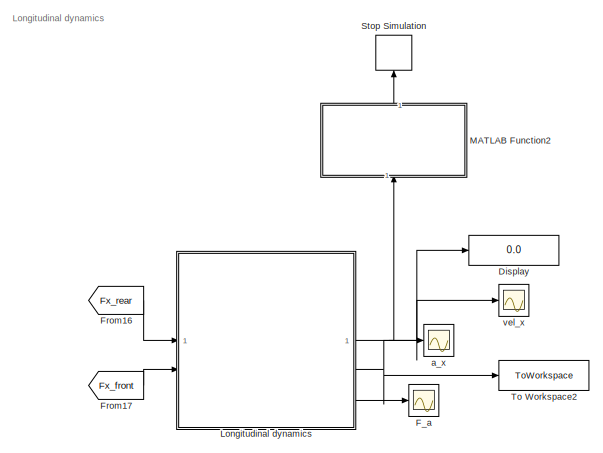
[diagram: root canvas - part 1/4, top right region]
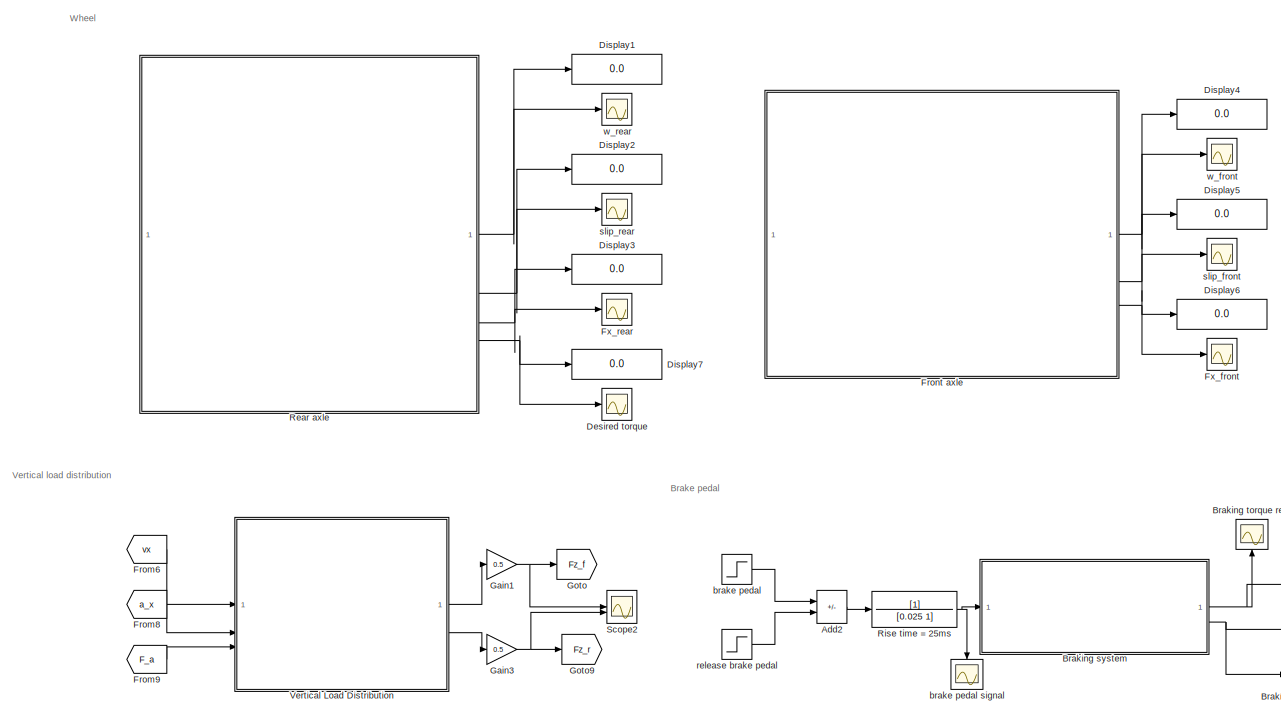
[diagram: root canvas - part 2/4, top left region]
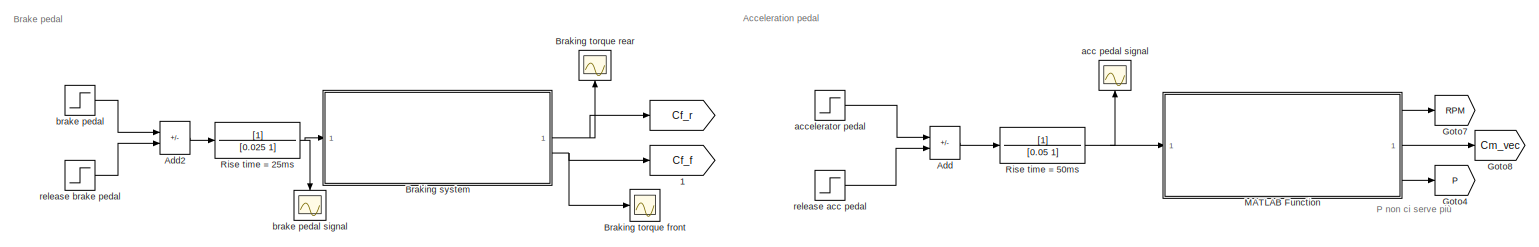
[diagram: root canvas - part 3/4, central region]
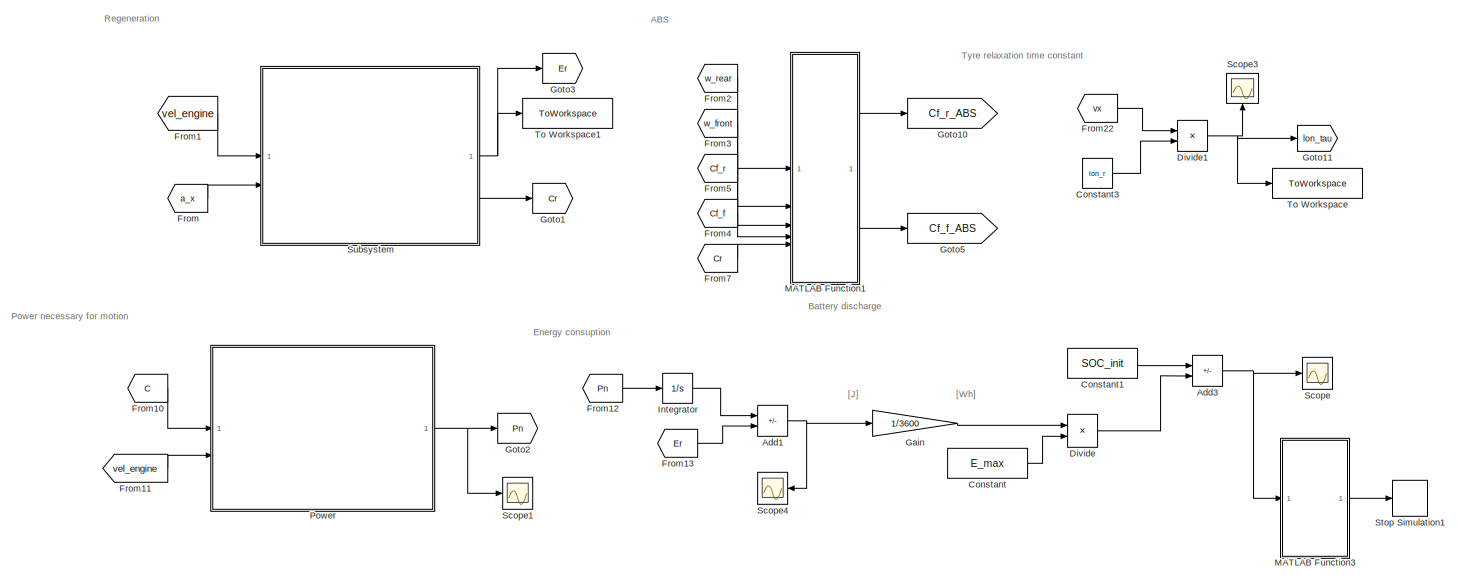
[diagram: root canvas - part 4/4, bottom center region]
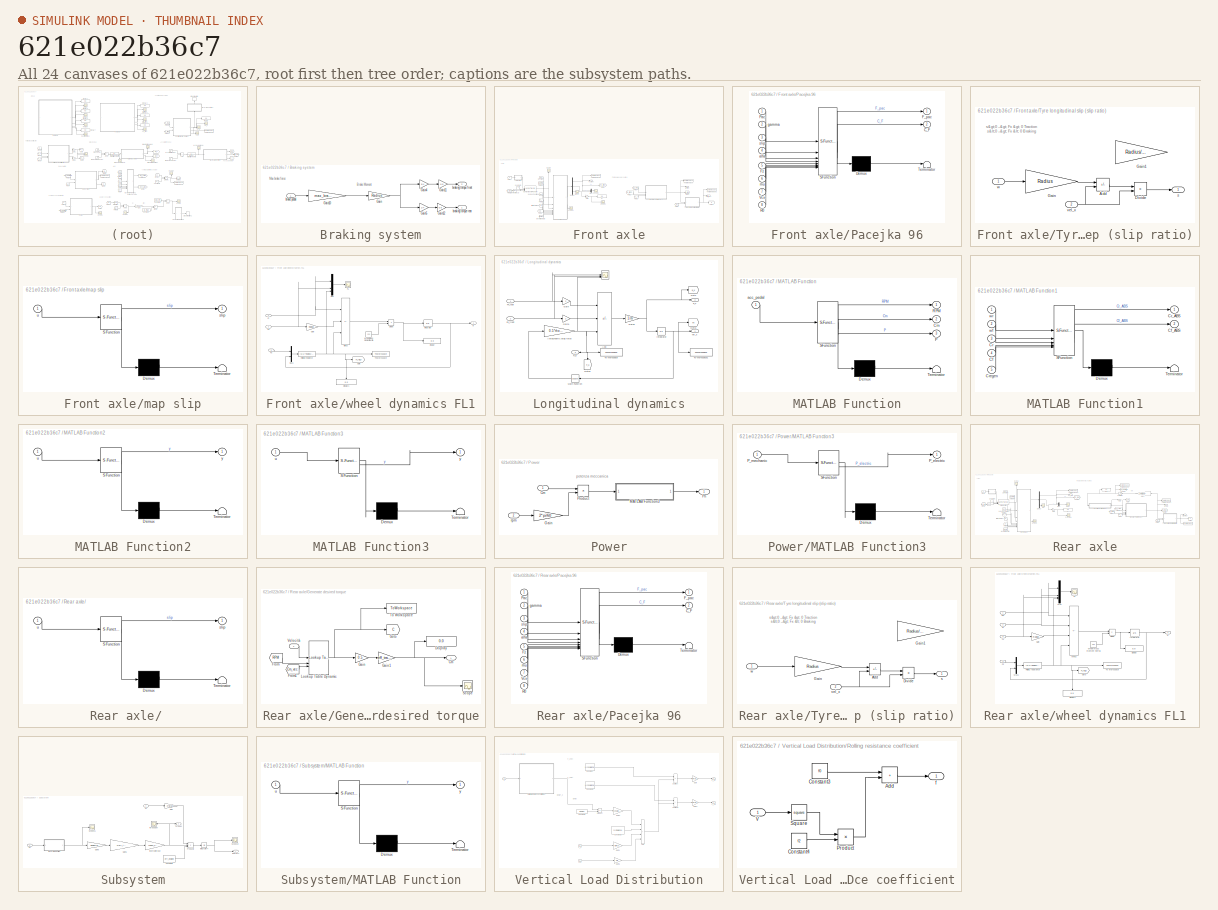
[diagram: thumbnail index - all 24 canvases of the model, root first then tree order]
MODEL slx_621e022b36c7
KIND model
CONFIG AbsTol = auto
CONFIG EnableMultiTasking = off
CONFIG FixedStep = auto
CONFIG MaxStep = auto
CONFIG MinStep = auto
CONFIG RelTol = 1e-4
CONFIG SampleTimeConstraint = Unconstrained
CONFIG SolverName = VariableStepAuto
CONFIG StartTime = 0.0
CONFIG StopTime = Ts
BLOCK [Goto]  
  GotoTag = Cf_r
  IconDisplay = Signal name
  TagVisibility = global
BLOCK [Goto]  1
  GotoTag = Cf_f
  IconDisplay = Signal name
  TagVisibility = global
BLOCK [Sum] Add
  IconShape = rectangular
  Inputs = +-
BLOCK [Sum] Add1
  IconShape = rectangular
  Inputs = +-
BLOCK [Sum] Add2
  IconShape = rectangular
  Inputs = +-
BLOCK [Sum] Add3
  IconShape = rectangular
  Inputs = +-
BLOCK [SubSystem] Braking system
BLOCK [Gain] Braking system/Gain
  Gain = Radius
BLOCK [Gain] Braking system/Gain10
  Gain = max_braking_force
BLOCK [Gain] Braking system/Gain11
  Gain = 0.5
BLOCK [Gain] Braking system/Gain12
  Gain = 0.5
BLOCK [Gain] Braking system/Gain4
  Gain = 3/4
BLOCK [Gain] Braking system/Gain5
  Gain = 1/4
BLOCK [Inport] Braking system/brake pedal
BLOCK [Outport] Braking system/braking torque front
  Port = 2
BLOCK [Outport] Braking system/braking torque rear
BLOCK [Scope] Braking torque front
  Floating = off
  NumInputPorts = 1
  ScopeSpecificationString = Simulink.scopes.TimeScopeBlockCfg('CurrentConfiguration', extmgr.ConfigurationSet(extmgr.Configuration('Core','General UI',true),extmgr.Configuration('Core','Source UI',true),extmgr.Configuration('Sources','WiredSimulink',true,'DataLoggingVariableName','ScopeData1'),extmgr.Configuration('Visuals','Time Domain',true,'SerializedDisplays',{struct('MinYLimReal','-26.94718','MaxYLimReal','242.52465','Y...<+1416ch>
BLOCK [Scope] Braking torque rear
  Floating = off
  NameLocation = right
  NumInputPorts = 1
  ScopeSpecificationString = Simulink.scopes.TimeScopeBlockCfg('CurrentConfiguration', extmgr.ConfigurationSet(extmgr.Configuration('Core','General UI',true),extmgr.Configuration('Core','Source UI',true),extmgr.Configuration('Sources','WiredSimulink',true,'DataLoggingVariableName','ScopeData3'),extmgr.Configuration('Visuals','Time Domain',true,'SerializedDisplays',{struct('MinYLimReal','-8.98239','MaxYLimReal','80.84155','YLa...<+1410ch>
BLOCK [Constant] Constant
  Value = E_max
BLOCK [Constant] Constant1
  Value = SOC_init
BLOCK [Constant] Constant3
  Value = lon_r
BLOCK [Scope] Desired torque
  Floating = off
  NumInputPorts = 1
  ScopeSpecificationString = Simulink.scopes.TimeScopeBlockCfg('CurrentConfiguration', extmgr.ConfigurationSet(extmgr.Configuration('Core','General UI',true),extmgr.Configuration('Core','Source UI',true),extmgr.Configuration('Sources','WiredSimulink',true,'DataLoggingVariableName','ScopeData2'),extmgr.Configuration('Visuals','Time Domain',true,'SerializedDisplays',{struct('MinYLimReal','-173.93906','MaxYLimReal','1565.45156',...<+1557ch>
BLOCK [Display] Display
  Decimation = 1
BLOCK [Display] Display1
  Decimation = 1
BLOCK [Display] Display2
  Decimation = 1
BLOCK [Display] Display3
  Decimation = 1
BLOCK [Display] Display4
  Decimation = 1
BLOCK [Display] Display5
  Decimation = 1
BLOCK [Display] Display6
  Decimation = 1
BLOCK [Display] Display7
  Decimation = 1
BLOCK [Product] Divide
  Inputs = */
  RndMeth = Zero
  SaturateOnIntegerOverflow = on
BLOCK [Product] Divide1
  Inputs = /*
BLOCK [Scope] F_a
  Floating = off
  NumInputPorts = 1
  ScopeSpecificationString = Simulink.scopes.TimeScopeBlockCfg('CurrentConfiguration', extmgr.ConfigurationSet(extmgr.Configuration('Core','General UI',true),extmgr.Configuration('Core','Source UI',true),extmgr.Configuration('Sources','WiredSimulink',true,'DataLoggingVariableName','ScopeData9'),extmgr.Configuration('Visuals','Time Domain',true,'SerializedDisplays',{struct('MinYLimReal','-2.16679','MaxYLimReal','0.61736','YLab...<+1542ch>
BLOCK [From] From
  GotoTag = a_x
  TagVisibility = global
BLOCK [From] From1
  GotoTag = vel_engine
  TagVisibility = global
BLOCK [From] From10
  GotoTag = C
  TagVisibility = global
BLOCK [From] From11
  GotoTag = vel_engine
  TagVisibility = global
BLOCK [From] From12
  GotoTag = Pn
  TagVisibility = global
BLOCK [From] From13
  GotoTag = Er
  TagVisibility = global
BLOCK [From] From16
  GotoTag = Fx_rear
  TagVisibility = global
BLOCK [From] From17
  GotoTag = Fx_front
  TagVisibility = global
BLOCK [From] From2
  GotoTag = w_rear
  TagVisibility = global
BLOCK [From] From22
  GotoTag = vx
  TagVisibility = global
BLOCK [From] From3
  GotoTag = w_front
  TagVisibility = global
BLOCK [From] From4
  GotoTag = Cf_f
  TagVisibility = global
BLOCK [From] From5
  GotoTag = Cf_r
  TagVisibility = global
BLOCK [From] From6
  GotoTag = vx
  TagVisibility = global
BLOCK [From] From7
  GotoTag = Cr
  TagVisibility = global
BLOCK [From] From8
  GotoTag = a_x
  TagVisibility = global
BLOCK [From] From9
  GotoTag = F_a
  TagVisibility = global
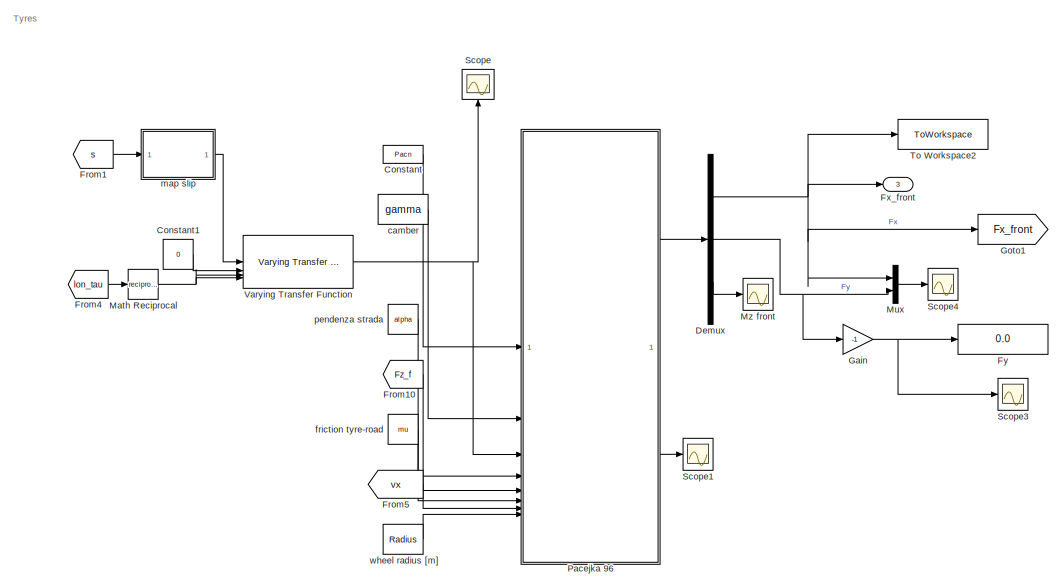
[diagram: Front axle - part 1/2, left side, full height]
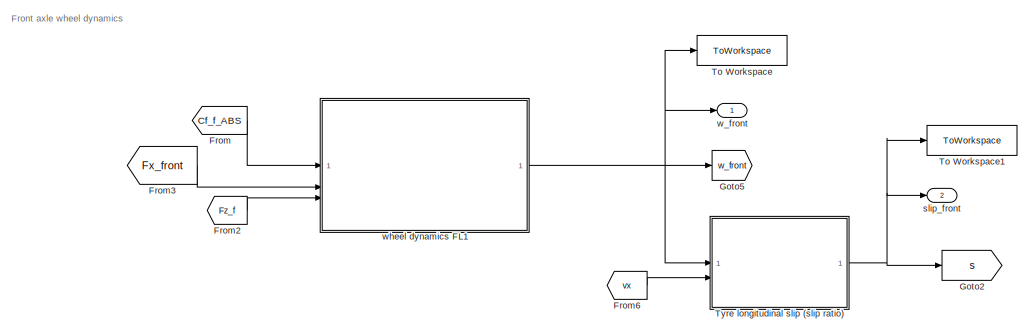
[diagram: Front axle - part 2/2, middle right region]
BLOCK [SubSystem] Front axle
BLOCK [Constant] Front axle/Constant
  Value = Pacn
BLOCK [Constant] Front axle/Constant1
  Value = 0
BLOCK [Demux] Front axle/Demux
  Outputs = 3
BLOCK [From] Front axle/From
  GotoTag = Cf_f_ABS
  IconDisplay = Signal name
  TagVisibility = global
BLOCK [From] Front axle/From1
  GotoTag = s
  TagVisibility = global
BLOCK [From] Front axle/From10
  GotoTag = Fz_f
  TagVisibility = global
BLOCK [From] Front axle/From2
  GotoTag = Fz_f
  TagVisibility = global
BLOCK [From] Front axle/From3
  GotoTag = Fx_front
  TagVisibility = global
BLOCK [From] Front axle/From4
  GotoTag = lon_tau
  TagVisibility = global
BLOCK [From] Front axle/From5
  GotoTag = vx
  TagVisibility = global
BLOCK [From] Front axle/From6
  GotoTag = vx
  TagVisibility = global
BLOCK [Outport] Front axle/Fx_front
  Port = 3
BLOCK [Display] Front axle/Fy
  Decimation = 1
BLOCK [Gain] Front axle/Gain
  Gain = -1
BLOCK [Goto] Front axle/Goto1
  GotoTag = Fx_front
  TagVisibility = global
BLOCK [Goto] Front axle/Goto2
  GotoTag = s
  TagVisibility = global
BLOCK [Goto] Front axle/Goto5
  GotoTag = w_front
  TagVisibility = global
BLOCK [Math] Front axle/Math Reciprocal
  Operator = reciprocal
  SignedPower = on
BLOCK [Mux] Front axle/Mux
  DisplayOption = bar
  Inputs = 2
BLOCK [Scope] Front axle/Mz front
  Floating = off
  NumInputPorts = 1
  ScopeSpecificationString = Simulink.scopes.TimeScopeBlockCfg('CurrentConfiguration', extmgr.ConfigurationSet(extmgr.Configuration('Core','General UI',true),extmgr.Configuration('Core','Source UI',true),extmgr.Configuration('Sources','WiredSimulink',true,'DataLoggingVariableName','ScopeData4'),extmgr.Configuration('Visuals','Time Domain',true),extmgr.Configuration('Tools','Plot Navigation',true),extmgr.Configuration('Tools',...<+40ch>
BLOCK [SubSystem] Front axle/Pacejka 96
  ErrorFcn = Stateflow.Translate.translate
  PermitHierarchicalResolution = ExplicitOnly
  SFBlockType = MATLAB Function
  TreatAsAtomicUnit = on
BLOCK [Demux] Front axle/Pacejka 96/ Demux 
  Outputs = 1
BLOCK [S-Function] Front axle/Pacejka 96/ SFunction 
  EnableBusSupport = on
  FunctionName = sf_sfun
  PortCounts = [8 3]
  SFcnIsStateOwnerBlock = off
  SFunctionDeploymentMode = off
  Tag = Stateflow S-Function 4
BLOCK [Terminator] Front axle/Pacejka 96/ Terminator 
BLOCK [Outport] Front axle/Pacejka 96/C_F
  Port = 2
BLOCK [Outport] Front axle/Pacejka 96/F_pac
BLOCK [Inport] Front axle/Pacejka 96/Fz
  Port = 5
BLOCK [Inport] Front axle/Pacejka 96/Pac
BLOCK [Inport] Front axle/Pacejka 96/R0
  Port = 8
BLOCK [Inport] Front axle/Pacejka 96/Vcx
  Port = 7
BLOCK [Inport] Front axle/Pacejka 96/alfa
  Port = 4
BLOCK [Inport] Front axle/Pacejka 96/gamma
  Port = 2
BLOCK [Inport] Front axle/Pacejka 96/mu
  Port = 6
BLOCK [Inport] Front axle/Pacejka 96/slip
  Port = 3
BLOCK [Scope] Front axle/Scope
  Floating = off
  NameLocation = right
  NumInputPorts = 1
  ScopeSpecificationString = Simulink.scopes.TimeScopeBlockCfg('CurrentConfiguration', extmgr.ConfigurationSet(extmgr.Configuration('Core','General UI',true),extmgr.Configuration('Core','Source UI',true),extmgr.Configuration('Sources','WiredSimulink',true,'DataLoggingVariableName','ScopeData3'),extmgr.Configuration('Visuals','Time Domain',true),extmgr.Configuration('Tools','Plot Navigation',true),extmgr.Configuration('Tools',...<+40ch>
BLOCK [Scope] Front axle/Scope1
  Floating = off
  NumInputPorts = 1
  ScopeSpecificationString = Simulink.scopes.TimeScopeBlockCfg('CurrentConfiguration', extmgr.ConfigurationSet(extmgr.Configuration('Core','General UI',true),extmgr.Configuration('Core','Source UI',true),extmgr.Configuration('Sources','WiredSimulink',true,'DataLoggingVariableName','ScopeData5'),extmgr.Configuration('Visuals','Time Domain',true),extmgr.Configuration('Tools','Plot Navigation',true),extmgr.Configuration('Tools',...<+40ch>
BLOCK [Scope] Front axle/Scope3
  Floating = off
  NumInputPorts = 1
  ScopeSpecificationString = Simulink.scopes.TimeScopeBlockCfg('CurrentConfiguration', extmgr.ConfigurationSet(extmgr.Configuration('Core','General UI',true),extmgr.Configuration('Core','Source UI',true),extmgr.Configuration('Sources','WiredSimulink',true,'DataLoggingVariableName','ScopeData2'),extmgr.Configuration('Visuals','Time Domain',true),extmgr.Configuration('Tools','Plot Navigation',true),extmgr.Configuration('Tools',...<+40ch>
BLOCK [Scope] Front axle/Scope4
  Floating = off
  NumInputPorts = 1
  ScopeSpecificationString = Simulink.scopes.TimeScopeBlockCfg('CurrentConfiguration', extmgr.ConfigurationSet(extmgr.Configuration('Core','General UI',true),extmgr.Configuration('Core','Source UI',true),extmgr.Configuration('Sources','WiredSimulink',true,'DataLoggingVariableName','ScopeData3'),extmgr.Configuration('Visuals','Time Domain',true,'SerializedDisplays',{struct('MinYLimReal','-131.89513','MaxYLimReal','-88.57013','...<+1523ch>
BLOCK [ToWorkspace] Front axle/To Workspace
  FixptAsFi = on
  MaxDataPoints = inf
  SampleTime = -1
  SaveFormat = Timeseries
  VariableName = w_front
BLOCK [ToWorkspace] Front axle/To Workspace1
  FixptAsFi = on
  MaxDataPoints = inf
  SampleTime = -1
  SaveFormat = Timeseries
  VariableName = slip_front
BLOCK [ToWorkspace] Front axle/To Workspace2
  FixptAsFi = on
  MaxDataPoints = inf
  SampleTime = -1
  SaveFormat = Timeseries
  VariableName = Fx_front
BLOCK [SubSystem] Front axle/Tyre longitudinal slip (slip ratio)
BLOCK [Sum] Front axle/Tyre longitudinal slip (slip ratio)/Add
  IconShape = rectangular
  Inputs = +-
BLOCK [Product] Front axle/Tyre longitudinal slip (slip ratio)/Divide
  Inputs = */
BLOCK [Gain] Front axle/Tyre longitudinal slip (slip ratio)/Gain
  Gain = Radius
BLOCK [Gain] Front axle/Tyre longitudinal slip (slip ratio)/Gain1
  Commented = on
  Gain = Radius/gear_ratio
BLOCK [Outport] Front axle/Tyre longitudinal slip (slip ratio)/s
BLOCK [Inport] Front axle/Tyre longitudinal slip (slip ratio)/vel_x
  Port = 2
BLOCK [Inport] Front axle/Tyre longitudinal slip (slip ratio)/w
BLOCK [Reference] Front axle/Varying Transfer Function  REF=cstblocks/Linear Parameter Varying/Varying Transfer Function
  SourceBlock = cstblocks/Linear Parameter Varying/Varying Transfer Function
  SourceType = Varying Transfer Function
BLOCK [Constant] Front axle/camber
  Value = gamma
BLOCK [Constant] Front axle/friction tyre-road
  Value = mu
BLOCK [SubSystem] Front axle/map slip
  ErrorFcn = Stateflow.Translate.translate
  PermitHierarchicalResolution = ExplicitOnly
  SFBlockType = MATLAB Function
  TreatAsAtomicUnit = on
BLOCK [Demux] Front axle/map slip/ Demux 
  Outputs = 1
BLOCK [S-Function] Front axle/map slip/ SFunction 
  EnableBusSupport = on
  FunctionName = sf_sfun
  PortCounts = [1 2]
  SFcnIsStateOwnerBlock = off
  SFunctionDeploymentMode = off
  Tag = Stateflow S-Function 5
BLOCK [Terminator] Front axle/map slip/ Terminator 
BLOCK [Outport] Front axle/map slip/slip
BLOCK [Inport] Front axle/map slip/u
BLOCK [Constant] Front axle/pendenza strada
  Value = alpha
BLOCK [Outport] Front axle/slip_front
  Port = 2
BLOCK [Outport] Front axle/w_front
BLOCK [SubSystem] Front axle/wheel dynamics FL1
BLOCK [Inport] Front axle/wheel dynamics FL1/Cf
BLOCK [Display] Front axle/wheel dynamics FL1/Display
  Decimation = 1
BLOCK [Display] Front axle/wheel dynamics FL1/Display1
  Decimation = 1
  NameLocation = left
BLOCK [Product] Front axle/wheel dynamics FL1/Divide
  Inputs = */
BLOCK [Scope] Front axle/wheel dynamics FL1/FL
  Floating = off
  NumInputPorts = 1
  ScopeSpecificationString = Simulink.scopes.TimeScopeBlockCfg('CurrentConfiguration', extmgr.ConfigurationSet(extmgr.Configuration('Core','General UI',true),extmgr.Configuration('Core','Source UI',true),extmgr.Configuration('Sources','WiredSimulink',true,'DataLoggingVariableName','ScopeData1'),extmgr.Configuration('Visuals','Time Domain',true,'SerializedDisplays',{struct('MinYLimReal','-2096.80782','MaxYLimReal','1025.72865'...<+1559ch>
BLOCK [Inport] Front axle/wheel dynamics FL1/Fx
  Port = 2
BLOCK [Inport] Front axle/wheel dynamics FL1/Fz
  Port = 3
BLOCK [Gain] Front axle/wheel dynamics FL1/Gain
  Gain = Radius
BLOCK [Goto] Front axle/wheel dynamics FL1/Goto
  GotoTag = F_roll_f
  TagVisibility = global
BLOCK [Integrator] Front axle/wheel dynamics FL1/Integrator
  InitialCondition = velstart/Radius
BLOCK [Sum] Front axle/wheel dynamics FL1/Minus
  IconShape = rectangular
  Inputs = ---
BLOCK [Mux] Front axle/wheel dynamics FL1/Mux
  DisplayOption = bar
BLOCK [Mux] Front axle/wheel dynamics FL1/Mux1
  DisplayOption = bar
  Inputs = 2
BLOCK [Fcn] Front axle/wheel dynamics FL1/Rolling resistance
  Expr = (u(1)*Radius)*(f0+f2*(Radius^2)*(u(2)^2))
BLOCK [ToWorkspace] Front axle/wheel dynamics FL1/To Workspace
  FixptAsFi = on
  MaxDataPoints = inf
  SampleTime = -1
  SaveFormat = Timeseries
  VariableName = F_roll_front
BLOCK [Constant] Front axle/wheel dynamics FL1/Wheel mass moment inertia
  Value = Jns
BLOCK [Outport] Front axle/wheel dynamics FL1/w
BLOCK [Constant] Front axle/wheel radius [m]
  Value = Radius
BLOCK [Scope] Fx_front
  Floating = off
  NumInputPorts = 1
  ScopeSpecificationString = Simulink.scopes.TimeScopeBlockCfg('CurrentConfiguration', extmgr.ConfigurationSet(extmgr.Configuration('Core','General UI',true),extmgr.Configuration('Core','Source UI',true),extmgr.Configuration('Sources','WiredSimulink',true,'DataLoggingVariableName','ScopeData6'),extmgr.Configuration('Visuals','Time Domain',true,'SerializedDisplays',{struct('MinYLimReal','-88.03039','MaxYLimReal','9.78115','YLa...<+1449ch>
BLOCK [Scope] Fx_rear
  Floating = off
  NumInputPorts = 1
  ScopeSpecificationString = Simulink.scopes.TimeScopeBlockCfg('CurrentConfiguration', extmgr.ConfigurationSet(extmgr.Configuration('Core','General UI',true),extmgr.Configuration('Core','Source UI',true),extmgr.Configuration('Sources','WiredSimulink',true,'DataLoggingVariableName','ScopeData5'),extmgr.Configuration('Visuals','Time Domain',true,'SerializedDisplays',{struct('MinYLimReal','-3932.45733','MaxYLimReal','4764.7098',...<+1558ch>
BLOCK [Gain] Gain
  Gain = 1/3600
BLOCK [Gain] Gain1
  Gain = 0.5
BLOCK [Gain] Gain3
  Gain = 0.5
BLOCK [Goto] Goto
  GotoTag = Fz_f
  TagVisibility = global
BLOCK [Goto] Goto1
  GotoTag = Cr
  TagVisibility = global
BLOCK [Goto] Goto10
  GotoTag = Cf_r_ABS
  TagVisibility = global
BLOCK [Goto] Goto11
  GotoTag = lon_tau
  TagVisibility = global
BLOCK [Goto] Goto2
  GotoTag = Pn
  TagVisibility = global
BLOCK [Goto] Goto3
  GotoTag = Er
  TagVisibility = global
BLOCK [Goto] Goto4
  GotoTag = P
  TagVisibility = global
BLOCK [Goto] Goto5
  GotoTag = Cf_f_ABS
  TagVisibility = global
BLOCK [Goto] Goto7
  GotoTag = RPM
  TagVisibility = global
BLOCK [Goto] Goto8
  GotoTag = Cm_vec
  TagVisibility = global
BLOCK [Goto] Goto9
  GotoTag = Fz_r
  TagVisibility = global
BLOCK [Integrator] Integrator
BLOCK [SubSystem] Longitudinal dynamics
BLOCK [Scope] Longitudinal dynamics/ 
  Floating = off
  NumInputPorts = 3
  ScopeSpecificationString = Simulink.scopes.TimeScopeBlockCfg('CurrentConfiguration', extmgr.ConfigurationSet(extmgr.Configuration('Core','General UI',true),extmgr.Configuration('Core','Source UI',true),extmgr.Configuration('Sources','WiredSimulink',true,'DataLoggingVariableName','ScopeData1'),extmgr.Configuration('Visuals','Time Domain',true,'SerializedDisplays',{struct('MinYLimReal','-1945.5499','MaxYLimReal','586.62198','...<+1430ch>
BLOCK [Sum] Longitudinal dynamics/Add
  IconShape = rectangular
  Inputs = ++-
BLOCK [Gain] Longitudinal dynamics/Aerodynamic drag force
  Gain = 0.5*rho*Cx*Af
BLOCK [Outport] Longitudinal dynamics/F_a
  NameLocation = top
  Port = 3
BLOCK [Inport] Longitudinal dynamics/Fx_front
  Port = 2
BLOCK [Inport] Longitudinal dynamics/Fx_rear
BLOCK [Gain] Longitudinal dynamics/Gain
  Gain = 2
BLOCK [Gain] Longitudinal dynamics/Gain1
  Gain = 2
BLOCK [Gain] Longitudinal dynamics/Gain2
  Gain = 1/m
BLOCK [Goto] Longitudinal dynamics/Goto
  GotoTag = a_x
  TagVisibility = global
BLOCK [Goto] Longitudinal dynamics/Goto1
  GotoTag = vx
  TagVisibility = global
BLOCK [Goto] Longitudinal dynamics/Goto2
  GotoTag = F_a
  NameLocation = left
  TagVisibility = global
BLOCK [Integrator] Longitudinal dynamics/Integrator
  InitialCondition = velstart
BLOCK [Math] Longitudinal dynamics/Math Function
  NameLocation = top
  Operator = square
  RndMeth = Zero
  SignedPower = on
BLOCK [ToWorkspace] Longitudinal dynamics/To Workspace
  FixptAsFi = on
  MaxDataPoints = inf
  SampleTime = -1
  SaveFormat = Timeseries
  VariableName = F_a
BLOCK [ToWorkspace] Longitudinal dynamics/To Workspace1
  FixptAsFi = on
  MaxDataPoints = inf
  SampleTime = -1
  SaveFormat = Timeseries
  VariableName = vx
BLOCK [Outport] Longitudinal dynamics/a_x
  Port = 2
BLOCK [Outport] Longitudinal dynamics/vel_x
BLOCK [SubSystem] MATLAB Function
  ErrorFcn = Stateflow.Translate.translate
  PermitHierarchicalResolution = ExplicitOnly
  SFBlockType = MATLAB Function
  TreatAsAtomicUnit = on
BLOCK [Demux] MATLAB Function/ Demux 
  Outputs = 1
BLOCK [S-Function] MATLAB Function/ SFunction 
  EnableBusSupport = on
  FunctionName = sf_sfun
  PortCounts = [1 4]
  SFcnIsStateOwnerBlock = off
  SFunctionDeploymentMode = off
  Tag = Stateflow S-Function 3
BLOCK [Terminator] MATLAB Function/ Terminator 
BLOCK [Outport] MATLAB Function/Cm
  Port = 2
BLOCK [Outport] MATLAB Function/P
  Port = 3
BLOCK [Outport] MATLAB Function/RPM
BLOCK [Inport] MATLAB Function/acc_pedal
BLOCK [SubSystem] MATLAB Function1
  ErrorFcn = Stateflow.Translate.translate
  PermitHierarchicalResolution = ExplicitOnly
  SFBlockType = MATLAB Function
  TreatAsAtomicUnit = on
BLOCK [Demux] MATLAB Function1/ Demux 
  Outputs = 1
BLOCK [S-Function] MATLAB Function1/ SFunction 
  EnableBusSupport = on
  FunctionName = sf_sfun
  PortCounts = [5 3]
  SFcnIsStateOwnerBlock = off
  SFunctionDeploymentMode = off
  Tag = Stateflow S-Function 6
BLOCK [Terminator] MATLAB Function1/ Terminator 
BLOCK [Inport] MATLAB Function1/Cf
  Port = 4
BLOCK [Outport] MATLAB Function1/Cf_ABS
  Port = 2
BLOCK [Inport] MATLAB Function1/Cr
  Port = 3
BLOCK [Outport] MATLAB Function1/Cr_ABS
BLOCK [Inport] MATLAB Function1/Cregen
  Port = 5
BLOCK [Inport] MATLAB Function1/wf
  Port = 2
BLOCK [Inport] MATLAB Function1/wr
BLOCK [SubSystem] MATLAB Function2
  ErrorFcn = Stateflow.Translate.translate
  NameLocation = right
  PermitHierarchicalResolution = ExplicitOnly
  SFBlockType = MATLAB Function
  TreatAsAtomicUnit = on
BLOCK [Demux] MATLAB Function2/ Demux 
  Outputs = 1
BLOCK [S-Function] MATLAB Function2/ SFunction 
  EnableBusSupport = on
  FunctionName = sf_sfun
  PortCounts = [1 2]
  SFcnIsStateOwnerBlock = off
  SFunctionDeploymentMode = off
  Tag = Stateflow S-Function 8
BLOCK [Terminator] MATLAB Function2/ Terminator 
BLOCK [Inport] MATLAB Function2/u
BLOCK [Outport] MATLAB Function2/y
BLOCK [SubSystem] MATLAB Function3
  ErrorFcn = Stateflow.Translate.translate
  PermitHierarchicalResolution = ExplicitOnly
  SFBlockType = MATLAB Function
  TreatAsAtomicUnit = on
BLOCK [Demux] MATLAB Function3/ Demux 
  Outputs = 1
BLOCK [S-Function] MATLAB Function3/ SFunction 
  EnableBusSupport = on
  FunctionName = sf_sfun
  PortCounts = [1 2]
  SFcnIsStateOwnerBlock = off
  SFunctionDeploymentMode = off
  Tag = Stateflow S-Function 10
BLOCK [Terminator] MATLAB Function3/ Terminator 
BLOCK [Inport] MATLAB Function3/u
BLOCK [Outport] MATLAB Function3/y
BLOCK [SubSystem] Power
BLOCK [Inport] Power/Cm
BLOCK [Gain] Power/Gain
  Gain = 2*pi/60
BLOCK [SubSystem] Power/MATLAB Function3
  ErrorFcn = Stateflow.Translate.translate
  PermitHierarchicalResolution = ExplicitOnly
  SFBlockType = MATLAB Function
  TreatAsAtomicUnit = on
BLOCK [Demux] Power/MATLAB Function3/ Demux 
  Outputs = 1
BLOCK [S-Function] Power/MATLAB Function3/ SFunction 
  EnableBusSupport = on
  FunctionName = sf_sfun
  PortCounts = [1 2]
  SFcnIsStateOwnerBlock = off
  SFunctionDeploymentMode = off
  Tag = Stateflow S-Function 7
BLOCK [Terminator] Power/MATLAB Function3/ Terminator 
BLOCK [Outport] Power/MATLAB Function3/P_electric
BLOCK [Inport] Power/MATLAB Function3/P_mechanic
BLOCK [Outport] Power/Pn
BLOCK [Product] Power/Product
BLOCK [Inport] Power/rpm
  Port = 2
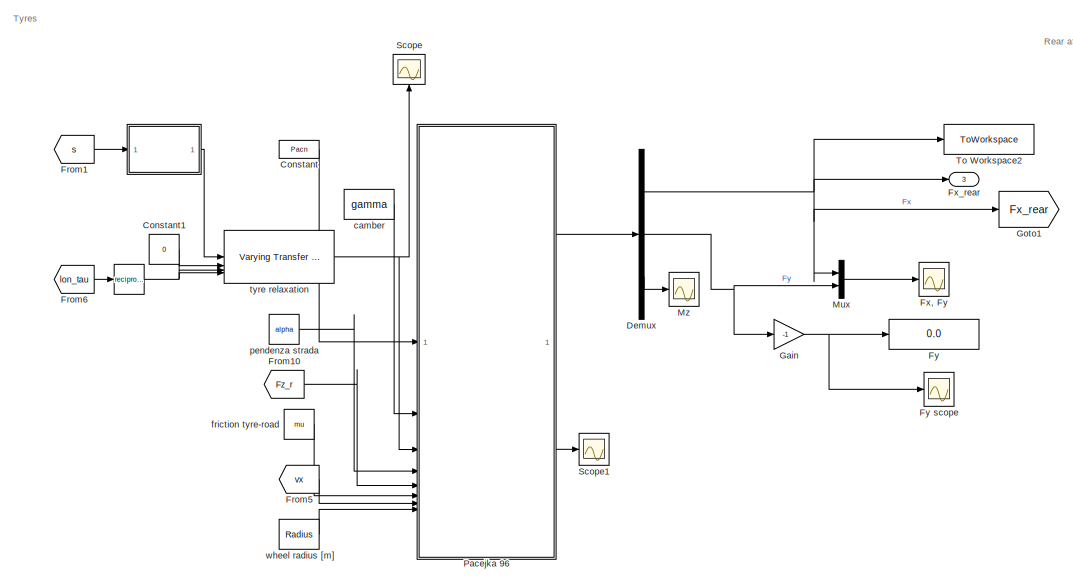
[diagram: Rear axle - part 1/2, left side, full height]
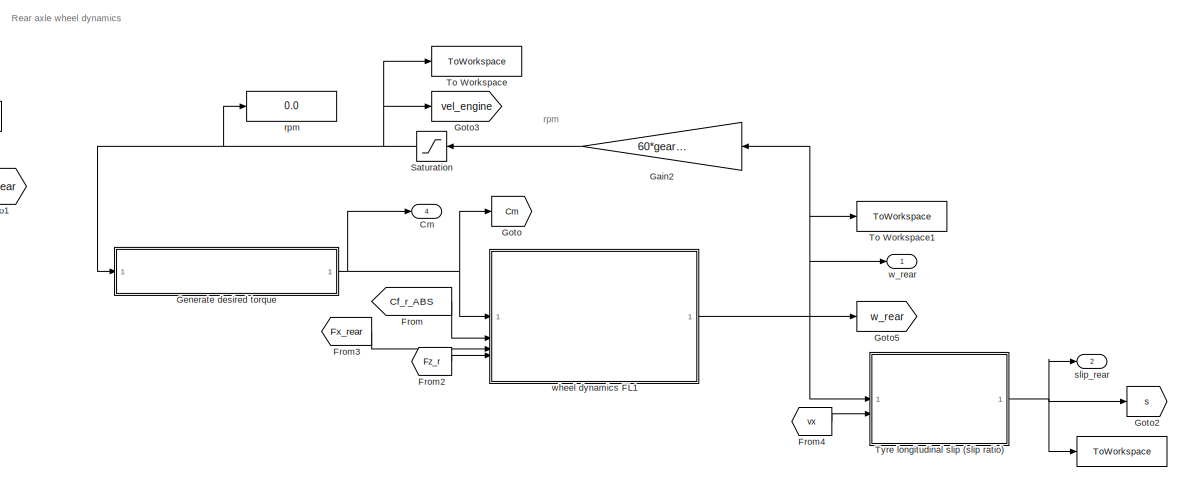
[diagram: Rear axle - part 2/2, right side, full height]
BLOCK [SubSystem] Rear axle
BLOCK [ToWorkspace] Rear axle/ 
  FixptAsFi = on
  MaxDataPoints = inf
  SampleTime = -1
  SaveFormat = Timeseries
  VariableName = slip_rear
BLOCK [SubSystem] Rear axle/  
  ErrorFcn = Stateflow.Translate.translate
  PermitHierarchicalResolution = ExplicitOnly
  SFBlockType = MATLAB Function
  TreatAsAtomicUnit = on
BLOCK [Math] Rear axle/    
  Operator = reciprocal
  SignedPower = on
BLOCK [Demux] Rear axle/  / Demux 
  Outputs = 1
BLOCK [S-Function] Rear axle/  / SFunction 
  EnableBusSupport = on
  FunctionName = sf_sfun
  PortCounts = [1 2]
  SFcnIsStateOwnerBlock = off
  SFunctionDeploymentMode = off
  Tag = Stateflow S-Function 2
BLOCK [Terminator] Rear axle/  / Terminator 
BLOCK [Outport] Rear axle/  /slip
BLOCK [Inport] Rear axle/  /u
BLOCK [Outport] Rear axle/Cm
  Port = 4
BLOCK [Constant] Rear axle/Constant
  Value = Pacn
BLOCK [Constant] Rear axle/Constant1
  Value = 0
BLOCK [Demux] Rear axle/Demux
  Outputs = 3
BLOCK [From] Rear axle/From
  GotoTag = Cf_r_ABS
  IconDisplay = Signal name
  TagVisibility = global
BLOCK [From] Rear axle/From1
  GotoTag = s
BLOCK [From] Rear axle/From10
  GotoTag = Fz_r
  TagVisibility = global
BLOCK [From] Rear axle/From2
  GotoTag = Fz_r
  TagVisibility = global
BLOCK [From] Rear axle/From3
  GotoTag = Fx_rear
  TagVisibility = global
BLOCK [From] Rear axle/From4
  GotoTag = vx
  TagVisibility = global
BLOCK [From] Rear axle/From5
  GotoTag = vx
  TagVisibility = global
BLOCK [From] Rear axle/From6
  GotoTag = lon_tau
  TagVisibility = global
BLOCK [Scope] Rear axle/Fx, Fy
  Floating = off
  NumInputPorts = 1
  ScopeSpecificationString = Simulink.scopes.TimeScopeBlockCfg('CurrentConfiguration', extmgr.ConfigurationSet(extmgr.Configuration('Core','General UI',true),extmgr.Configuration('Core','Source UI',true),extmgr.Configuration('Sources','WiredSimulink',true,'DataLoggingSaveFormat','StructureWithTime','DataLoggingDecimation','1','DataLoggingDecimateData',true,'DataLoggingVariableName','ScopeData5'),extmgr.Configuration('Visuals'...<+1731ch>
BLOCK [Outport] Rear axle/Fx_rear
  Port = 3
BLOCK [Display] Rear axle/Fy
  Decimation = 1
BLOCK [Scope] Rear axle/Fy scope
  Floating = off
  NumInputPorts = 1
  ScopeSpecificationString = Simulink.scopes.TimeScopeBlockCfg('CurrentConfiguration', extmgr.ConfigurationSet(extmgr.Configuration('Core','General UI',true),extmgr.Configuration('Core','Source UI',true),extmgr.Configuration('Sources','WiredSimulink',true,'DataLogging',true,'DataLoggingVariableName','ScopeData6','DataLoggingSaveFormat','Array','DataLoggingDecimation','1','DataLoggingDecimateData',true),extmgr.Configuration('V...<+1653ch>
BLOCK [Gain] Rear axle/Gain
  Gain = -1
BLOCK [Gain] Rear axle/Gain2
  Gain = 60*gear_ratio/(2*pi)
  NameLocation = top
BLOCK [SubSystem] Rear axle/Generate desired torque
BLOCK [Outport] Rear axle/Generate desired torque/Cm
BLOCK [Display] Rear axle/Generate desired torque/Display
  Decimation = 1
BLOCK [From] Rear axle/Generate desired torque/From
  GotoTag = RPM
  TagVisibility = global
BLOCK [From] Rear axle/Generate desired torque/From1
  GotoTag = Cm_vec
  TagVisibility = global
BLOCK [Gain] Rear axle/Generate desired torque/Gain
  Gain = 0.5
BLOCK [Gain] Rear axle/Generate desired torque/Gain1
  Gain = eff_transmission*gear_ratio
BLOCK [Goto] Rear axle/Generate desired torque/Goto
  GotoTag = C
  TagVisibility = global
BLOCK [Reference] Rear axle/Generate desired torque/Lookup Table Dynamic  REF=simulink/Lookup
Tables/Lookup
Table
Dynamic
  SourceBlock = simulink/Lookup\nTables/Lookup\nTable\nDynamic
  SourceType = Lookup Table Dynamic
BLOCK [Scope] Rear axle/Generate desired torque/Scope
  Floating = off
  NumInputPorts = 1
  ScopeSpecificationString = Simulink.scopes.TimeScopeBlockCfg('CurrentConfiguration', extmgr.ConfigurationSet(extmgr.Configuration('Core','General UI',true),extmgr.Configuration('Core','Source UI',true),extmgr.Configuration('Sources','WiredSimulink',true,'DataLoggingVariableName','ScopeData2'),extmgr.Configuration('Visuals','Time Domain',true,'SerializedDisplays',{struct('MinYLimReal','-101.94323','MaxYLimReal','917.48906','...<+1497ch>
BLOCK [ToWorkspace] Rear axle/Generate desired torque/To Workspace
  FixptAsFi = on
  MaxDataPoints = inf
  SampleTime = -1
  SaveFormat = Timeseries
  VariableName = C
BLOCK [Inport] Rear axle/Generate desired torque/Velocità
BLOCK [Goto] Rear axle/Goto
  GotoTag = Cm
  TagVisibility = global
BLOCK [Goto] Rear axle/Goto1
  GotoTag = Fx_rear
  TagVisibility = global
BLOCK [Goto] Rear axle/Goto2
  GotoTag = s
BLOCK [Goto] Rear axle/Goto3
  GotoTag = vel_engine
  TagVisibility = global
BLOCK [Goto] Rear axle/Goto5
  GotoTag = w_rear
  TagVisibility = global
BLOCK [Mux] Rear axle/Mux
  DisplayOption = bar
  Inputs = 2
BLOCK [Scope] Rear axle/Mz
  Floating = off
  NumInputPorts = 1
  ScopeSpecificationString = Simulink.scopes.TimeScopeBlockCfg('CurrentConfiguration', extmgr.ConfigurationSet(extmgr.Configuration('Core','General UI',true),extmgr.Configuration('Core','Source UI',true),extmgr.Configuration('Sources','WiredSimulink',true,'DataLoggingSaveFormat','Array','DataLoggingDecimation','1','DataLoggingDecimateData',true,'DataLoggingVariableName','ScopeData7','DataLogging',true),extmgr.Configuration('V...<+1719ch>
BLOCK [SubSystem] Rear axle/Pacejka 96
  ErrorFcn = Stateflow.Translate.translate
  PermitHierarchicalResolution = ExplicitOnly
  SFBlockType = MATLAB Function
  TreatAsAtomicUnit = on
BLOCK [Demux] Rear axle/Pacejka 96/ Demux 
  Outputs = 1
BLOCK [S-Function] Rear axle/Pacejka 96/ SFunction 
  EnableBusSupport = on
  FunctionName = sf_sfun
  PortCounts = [8 3]
  SFcnIsStateOwnerBlock = off
  SFunctionDeploymentMode = off
  Tag = Stateflow S-Function 1
BLOCK [Terminator] Rear axle/Pacejka 96/ Terminator 
BLOCK [Outport] Rear axle/Pacejka 96/C_F
  Port = 2
BLOCK [Outport] Rear axle/Pacejka 96/F_pac
BLOCK [Inport] Rear axle/Pacejka 96/Fz
  Port = 5
BLOCK [Inport] Rear axle/Pacejka 96/Pac
BLOCK [Inport] Rear axle/Pacejka 96/R0
  Port = 8
BLOCK [Inport] Rear axle/Pacejka 96/Vcx
  Port = 7
BLOCK [Inport] Rear axle/Pacejka 96/alfa
  Port = 4
BLOCK [Inport] Rear axle/Pacejka 96/gamma
  Port = 2
BLOCK [Inport] Rear axle/Pacejka 96/mu
  Port = 6
BLOCK [Inport] Rear axle/Pacejka 96/slip
  Port = 3
BLOCK [Saturate] Rear axle/Saturation
  LowerLimit = -16000
  UpperLimit = 16000
BLOCK [Scope] Rear axle/Scope
  Floating = off
  NameLocation = right
  NumInputPorts = 1
  ScopeSpecificationString = Simulink.scopes.TimeScopeBlockCfg('CurrentConfiguration', extmgr.ConfigurationSet(extmgr.Configuration('Core','General UI',true),extmgr.Configuration('Core','Source UI',true),extmgr.Configuration('Sources','WiredSimulink',true,'DataLoggingVariableName','ScopeData2'),extmgr.Configuration('Visuals','Time Domain',true,'SerializedDisplays',{struct('MinYLimReal','-0.00321','MaxYLimReal','0.01311','YLab...<+1422ch>
BLOCK [Scope] Rear axle/Scope1
  Floating = off
  NumInputPorts = 1
  ScopeSpecificationString = Simulink.scopes.TimeScopeBlockCfg('CurrentConfiguration', extmgr.ConfigurationSet(extmgr.Configuration('Core','General UI',true),extmgr.Configuration('Core','Source UI',true),extmgr.Configuration('Sources','WiredSimulink',true,'DataLoggingVariableName','ScopeData9'),extmgr.Configuration('Visuals','Time Domain',true,'SerializedDisplays',{struct('MinYLimReal','-119500.07536','MaxYLimReal','136710.83...<+1552ch>
BLOCK [ToWorkspace] Rear axle/To Workspace
  FixptAsFi = on
  MaxDataPoints = inf
  SampleTime = -1
  SaveFormat = Timeseries
  VariableName = vel_engine
BLOCK [ToWorkspace] Rear axle/To Workspace1
  FixptAsFi = on
  MaxDataPoints = inf
  SampleTime = -1
  SaveFormat = Timeseries
  VariableName = w_rear
BLOCK [ToWorkspace] Rear axle/To Workspace2
  FixptAsFi = on
  MaxDataPoints = inf
  SampleTime = -1
  SaveFormat = Timeseries
  VariableName = Fx_rear
BLOCK [SubSystem] Rear axle/Tyre longitudinal slip (slip ratio)
BLOCK [Sum] Rear axle/Tyre longitudinal slip (slip ratio)/Add
  IconShape = rectangular
  Inputs = +-
BLOCK [Product] Rear axle/Tyre longitudinal slip (slip ratio)/Divide
  Inputs = */
BLOCK [Gain] Rear axle/Tyre longitudinal slip (slip ratio)/Gain
  Gain = Radius
BLOCK [Gain] Rear axle/Tyre longitudinal slip (slip ratio)/Gain1
  Commented = on
  Gain = Radius/gear_ratio
BLOCK [Outport] Rear axle/Tyre longitudinal slip (slip ratio)/s
BLOCK [Inport] Rear axle/Tyre longitudinal slip (slip ratio)/vel_x
  Port = 2
BLOCK [Inport] Rear axle/Tyre longitudinal slip (slip ratio)/w
BLOCK [Constant] Rear axle/camber
  Value = gamma
BLOCK [Constant] Rear axle/friction tyre-road
  Value = mu
BLOCK [Constant] Rear axle/pendenza strada
  Value = alpha
BLOCK [Display] Rear axle/rpm
  Decimation = 1
BLOCK [Outport] Rear axle/slip_rear
  Port = 2
BLOCK [Reference] Rear axle/tyre relaxation  REF=cstblocks/Linear Parameter Varying/Varying Transfer Function
  SourceBlock = cstblocks/Linear Parameter Varying/Varying Transfer Function
  SourceType = Varying Transfer Function
BLOCK [Outport] Rear axle/w_rear
BLOCK [SubSystem] Rear axle/wheel dynamics FL1
BLOCK [Inport] Rear axle/wheel dynamics FL1/Cf
  Port = 2
BLOCK [Inport] Rear axle/wheel dynamics FL1/Cm
BLOCK [Display] Rear axle/wheel dynamics FL1/Display
  Decimation = 1
BLOCK [Display] Rear axle/wheel dynamics FL1/Display1
  Decimation = 1
  NameLocation = left
BLOCK [Product] Rear axle/wheel dynamics FL1/Divide
  Inputs = */
BLOCK [Scope] Rear axle/wheel dynamics FL1/FL
  Floating = off
  NumInputPorts = 1
  ScopeSpecificationString = Simulink.scopes.TimeScopeBlockCfg('CurrentConfiguration', extmgr.ConfigurationSet(extmgr.Configuration('Core','General UI',true),extmgr.Configuration('Core','Source UI',true),extmgr.Configuration('Sources','WiredSimulink',true,'DataLoggingVariableName','ScopeData1'),extmgr.Configuration('Visuals','Time Domain',true,'SerializedDisplays',{struct('MinYLimReal','-1385.48834','MaxYLimReal','4476.03259'...<+1555ch>
BLOCK [Inport] Rear axle/wheel dynamics FL1/Fx
  Port = 3
BLOCK [Inport] Rear axle/wheel dynamics FL1/Fz
  Port = 4
BLOCK [Gain] Rear axle/wheel dynamics FL1/Gain
  Gain = Radius
BLOCK [Goto] Rear axle/wheel dynamics FL1/Goto
  GotoTag = F_roll_r
  TagVisibility = global
BLOCK [Integrator] Rear axle/wheel dynamics FL1/Integrator
  InitialCondition = velstart/Radius
BLOCK [Sum] Rear axle/wheel dynamics FL1/Minus
  IconShape = rectangular
  Inputs = +---
BLOCK [Mux] Rear axle/wheel dynamics FL1/Mux
  DisplayOption = bar
BLOCK [Mux] Rear axle/wheel dynamics FL1/Mux1
  DisplayOption = bar
  Inputs = 2
BLOCK [Fcn] Rear axle/wheel dynamics FL1/Rolling resistance
  Expr = (u(1)*Radius)*(f0+f2*(Radius^2)*(u(2)^2))
BLOCK [ToWorkspace] Rear axle/wheel dynamics FL1/To Workspace
  FixptAsFi = on
  MaxDataPoints = inf
  SampleTime = -1
  SaveFormat = Timeseries
  VariableName = F_roll_rear
BLOCK [Constant] Rear axle/wheel dynamics FL1/Wheel mass moment inertia
  Value = Jns
BLOCK [Outport] Rear axle/wheel dynamics FL1/w
BLOCK [Constant] Rear axle/wheel radius [m]
  Value = Radius
BLOCK [TransferFcn] Rise time = 25ms
  Denominator = [0.025 1]
BLOCK [TransferFcn] Rise time = 50ms
  Denominator = [0.05 1]
BLOCK [Scope] Scope
  Floating = off
  NumInputPorts = 1
  ScopeSpecificationString = Simulink.scopes.TimeScopeBlockCfg('CurrentConfiguration', extmgr.ConfigurationSet(extmgr.Configuration('Core','General UI',true),extmgr.Configuration('Core','Source UI',true),extmgr.Configuration('Sources','WiredSimulink',true,'DataLoggingVariableName','ScopeData1'),extmgr.Configuration('Visuals','Time Domain',true,'SerializedDisplays',{struct('MinYLimReal','0.93404','MaxYLimReal','0.95178','YLabe...<+1475ch>
BLOCK [Scope] Scope1
  Floating = off
  NumInputPorts = 1
  ScopeSpecificationString = Simulink.scopes.TimeScopeBlockCfg('CurrentConfiguration', extmgr.ConfigurationSet(extmgr.Configuration('Core','General UI',true),extmgr.Configuration('Core','Source UI',true),extmgr.Configuration('Sources','WiredSimulink',true,'DataLoggingVariableName','ScopeData2'),extmgr.Configuration('Visuals','Time Domain',true),extmgr.Configuration('Tools','Plot Navigation',true),extmgr.Configuration('Tools',...<+40ch>
BLOCK [Scope] Scope2
  Floating = off
  NumInputPorts = 2
  ScopeSpecificationString = Simulink.scopes.TimeScopeBlockCfg('CurrentConfiguration', extmgr.ConfigurationSet(extmgr.Configuration('Core','General UI',true),extmgr.Configuration('Core','Source UI',true),extmgr.Configuration('Sources','WiredSimulink',true,'DataLoggingVariableName','ScopeData14'),extmgr.Configuration('Visuals','Time Domain',true,'SerializedDisplays',{struct('MinYLimReal','3956.77214','MaxYLimReal','4931.08786'...<+1485ch>
BLOCK [Scope] Scope3
  Floating = off
  NameLocation = right
  NumInputPorts = 1
  ScopeSpecificationString = Simulink.scopes.TimeScopeBlockCfg('CurrentConfiguration', extmgr.ConfigurationSet(extmgr.Configuration('Core','General UI',true),extmgr.Configuration('Core','Source UI',true),extmgr.Configuration('Sources','WiredSimulink',true,'DataLoggingVariableName','ScopeData5'),extmgr.Configuration('Visuals','Time Domain',true,'SerializedDisplays',{struct('MinYLimReal','0.00065','MaxYLimReal','0.00604','YLabe...<+1412ch>
BLOCK [Scope] Scope4
  Floating = off
  NameLocation = top
  NumInputPorts = 1
  ScopeSpecificationString = Simulink.scopes.TimeScopeBlockCfg('CurrentConfiguration', extmgr.ConfigurationSet(extmgr.Configuration('Core','General UI',true),extmgr.Configuration('Core','Source UI',true),extmgr.Configuration('Sources','WiredSimulink',true,'DataLoggingVariableName','ScopeData3'),extmgr.Configuration('Visuals','Time Domain',true),extmgr.Configuration('Tools','Plot Navigation',true),extmgr.Configuration('Tools',...<+40ch>
BLOCK [Stop] Stop Simulation
  NameLocation = right
BLOCK [Stop] Stop Simulation1
BLOCK [SubSystem] Subsystem
BLOCK [Constant] Subsystem/Constant5
  Value = eff_engine
BLOCK [Outport] Subsystem/Energy1
BLOCK [Gain] Subsystem/Gain
  Gain = 2*pi/60
BLOCK [Gain] Subsystem/Gain5
  Gain = Radius*m
BLOCK [Gain] Subsystem/Gain6
  Gain = 2*eff_transmission/gear_ratio
BLOCK [Integrator] Subsystem/Integrator4
BLOCK [SubSystem] Subsystem/MATLAB Function
  ErrorFcn = Stateflow.Translate.translate
  PermitHierarchicalResolution = ExplicitOnly
  SFBlockType = MATLAB Function
  TreatAsAtomicUnit = on
BLOCK [Demux] Subsystem/MATLAB Function/ Demux 
  Outputs = 1
BLOCK [S-Function] Subsystem/MATLAB Function/ SFunction 
  EnableBusSupport = on
  FunctionName = sf_sfun
  PortCounts = [1 2]
  SFcnIsStateOwnerBlock = off
  SFunctionDeploymentMode = off
  Tag = Stateflow S-Function 9
BLOCK [Terminator] Subsystem/MATLAB Function/ Terminator 
BLOCK [Inport] Subsystem/MATLAB Function/u
BLOCK [Outport] Subsystem/MATLAB Function/y
BLOCK [Product] Subsystem/Product2
  Inputs = 3
BLOCK [Scope] Subsystem/Scope10
  Floating = off
  NumInputPorts = 1
  ScopeSpecificationString = Simulink.scopes.TimeScopeBlockCfg('CurrentConfiguration', extmgr.ConfigurationSet(extmgr.Configuration('Core','General UI',true),extmgr.Configuration('Core','Source UI',true),extmgr.Configuration('Sources','WiredSimulink',true,'DataLoggingVariableName','ScopeData2'),extmgr.Configuration('Visuals','Time Domain',true,'SerializedDisplays',{struct('MinYLimReal','-14.44875','MaxYLimReal','130.03871','Y...<+1458ch>
BLOCK [Scope] Subsystem/Scope11
  Floating = off
  NumInputPorts = 1
  ScopeSpecificationString = Simulink.scopes.TimeScopeBlockCfg('CurrentConfiguration', extmgr.ConfigurationSet(extmgr.Configuration('Core','General UI',true),extmgr.Configuration('Core','Source UI',true),extmgr.Configuration('Sources','WiredSimulink',true,'DataLoggingVariableName','ScopeData3'),extmgr.Configuration('Visuals','Time Domain',true,'SerializedDisplays',{struct('MinYLimReal','-0.23587','MaxYLimReal','2.12282','YLab...<+1452ch>
BLOCK [Outport] Subsystem/Torque1
  NameLocation = top
  Port = 2
BLOCK [Inport] Subsystem/a1
  Port = 2
BLOCK [Scope] Subsystem/torque gen
  Floating = off
  NumInputPorts = 1
  ScopeSpecificationString = Simulink.scopes.TimeScopeBlockCfg('CurrentConfiguration', extmgr.ConfigurationSet(extmgr.Configuration('Core','General UI',true),extmgr.Configuration('Core','Source UI',true),extmgr.Configuration('Sources','WiredSimulink',true,'DataLoggingVariableName','ScopeData6'),extmgr.Configuration('Visuals','Time Domain',true,'SerializedDisplays',{struct('MinYLimReal','-28.14489','MaxYLimReal','253.30401','Y...<+1415ch>
BLOCK [Gain] Subsystem/tune reg torque
  Gain = regen_scaling
BLOCK [Inport] Subsystem/w1
BLOCK [ToWorkspace] To Workspace
  FixptAsFi = on
  MaxDataPoints = inf
  SampleTime = -1
  SaveFormat = Timeseries
  VariableName = lon_tau
BLOCK [ToWorkspace] To Workspace1
  FixptAsFi = on
  MaxDataPoints = inf
  SampleTime = -1
  SaveFormat = Timeseries
  VariableName = Er
BLOCK [ToWorkspace] To Workspace2
  FixptAsFi = on
  MaxDataPoints = inf
  SampleTime = -1
  SaveFormat = Timeseries
  VariableName = ax
BLOCK [SubSystem] Vertical Load Distribution
BLOCK [Sum] Vertical Load Distribution/Add
  IconShape = rectangular
  Inputs = ++++
BLOCK [Constant] Vertical Load Distribution/Constant
  Value = b*cos(alpha)
BLOCK [Constant] Vertical Load Distribution/Constant1
  Value = h*sin(alpha)
BLOCK [Constant] Vertical Load Distribution/Constant2
  Value = a*cos(alpha)
BLOCK [Constant] Vertical Load Distribution/Constant3
  Value = Radius
BLOCK [Outport] Vertical Load Distribution/F_ZF
BLOCK [Outport] Vertical Load Distribution/F_ZR
  Port = 2
BLOCK [Inport] Vertical Load Distribution/F_a
  Port = 3
BLOCK [Gain] Vertical Load Distribution/Gain
  Gain = m*g/L
BLOCK [Gain] Vertical Load Distribution/Gain2
  Gain = cos(alpha)
BLOCK [Gain] Vertical Load Distribution/Gain3
  Gain = m*g/L
BLOCK [Gain] Vertical Load Distribution/Gain4
  Gain = h/(m*g)
BLOCK [Gain] Vertical Load Distribution/Gain5
  Gain = h/g
BLOCK [Product] Vertical Load Distribution/Product
BLOCK [SubSystem] Vertical Load Distribution/Rolling resistance coefficient
BLOCK [Sum] Vertical Load Distribution/Rolling resistance coefficient/Add
  IconShape = rectangular
BLOCK [Constant] Vertical Load Distribution/Rolling resistance coefficient/Constant3
  Value = f0
BLOCK [Constant] Vertical Load Distribution/Rolling resistance coefficient/Constant4
  Value = f2
BLOCK [Product] Vertical Load Distribution/Rolling resistance coefficient/Product
BLOCK [Math] Vertical Load Distribution/Rolling resistance coefficient/Square
  Operator = square
BLOCK [Inport] Vertical Load Distribution/Rolling resistance coefficient/V
BLOCK [Outport] Vertical Load Distribution/Rolling resistance coefficient/f
BLOCK [Sum] Vertical Load Distribution/Subtract
  IconShape = rectangular
  Inputs = +-
BLOCK [Sum] Vertical Load Distribution/Subtract1
  IconShape = rectangular
BLOCK [Inport] Vertical Load Distribution/V
BLOCK [Inport] Vertical Load Distribution/xdd
  Port = 2
BLOCK [Scope] a_x
  Floating = off
  NumInputPorts = 1
  ScopeSpecificationString = Simulink.scopes.TimeScopeBlockCfg('CurrentConfiguration', extmgr.ConfigurationSet(extmgr.Configuration('Core','General UI',true),extmgr.Configuration('Core','Source UI',true),extmgr.Configuration('Sources','WiredSimulink',true,'DataLoggingVariableName','ScopeData1'),extmgr.Configuration('Visuals','Time Domain',true,'SerializedDisplays',{struct('MinYLimReal','-10.41616','MaxYLimReal','0.96289','YLa...<+1465ch>
BLOCK [Scope] acc pedal signal
  Floating = off
  NameLocation = right
  NumInputPorts = 1
  ScopeSpecificationString = Simulink.scopes.TimeScopeBlockCfg('CurrentConfiguration', extmgr.ConfigurationSet(extmgr.Configuration('Core','General UI',true),extmgr.Configuration('Core','Source UI',true),extmgr.Configuration('Sources','WiredSimulink',true,'DataLoggingVariableName','ScopeData6'),extmgr.Configuration('Visuals','Time Domain',true,'SerializedDisplays',{struct('MinYLimReal','-0.125','MaxYLimReal','1.125','YLabelRe...<+1415ch>
BLOCK [Step] accelerator pedal
  After = acc_pedal
  SampleTime = 0
  Time = time_acc+delay_acc
BLOCK [Step] brake pedal
  After = brake_pedal
  SampleTime = 0
  Time = time_brake+delay_brake
BLOCK [Scope] brake pedal signal
  Floating = off
  NameLocation = left
  NumInputPorts = 1
  ScopeSpecificationString = Simulink.scopes.TimeScopeBlockCfg('CurrentConfiguration', extmgr.ConfigurationSet(extmgr.Configuration('Core','General UI',true),extmgr.Configuration('Core','Source UI',true),extmgr.Configuration('Sources','WiredSimulink',true,'DataLoggingVariableName','ScopeData1'),extmgr.Configuration('Visuals','Time Domain',true,'SerializedDisplays',{struct('MinYLimReal','-0.125','MaxYLimReal','1.125','YLabelRe...<+1392ch>
BLOCK [Step] release acc pedal
  After = acc_pedal
  SampleTime = 0
  Time = delay_release_acc+time_acc+delay_acc
BLOCK [Step] release brake pedal
  After = brake_pedal
  SampleTime = 0
  Time = delay_release_brake+time_brake+delay_brake
BLOCK [Scope] slip_front
  Floating = off
  NumInputPorts = 1
  ScopeSpecificationString = Simulink.scopes.TimeScopeBlockCfg('CurrentConfiguration', extmgr.ConfigurationSet(extmgr.Configuration('Core','General UI',true),extmgr.Configuration('Core','Source UI',true),extmgr.Configuration('Sources','WiredSimulink',true,'DataLoggingVariableName','ScopeData7'),extmgr.Configuration('Visuals','Time Domain',true,'SerializedDisplays',{struct('MinYLimReal','-0.0014','MaxYLimReal','0.00016','YLabe...<+1529ch>
BLOCK [Scope] slip_rear
  Floating = off
  NumInputPorts = 1
  ScopeSpecificationString = Simulink.scopes.TimeScopeBlockCfg('CurrentConfiguration', extmgr.ConfigurationSet(extmgr.Configuration('Core','General UI',true),extmgr.Configuration('Core','Source UI',true),extmgr.Configuration('Sources','WiredSimulink',true,'DataLoggingVariableName','ScopeData4'),extmgr.Configuration('Visuals','Time Domain',true,'SerializedDisplays',{struct('MinYLimReal','-1.10148','MaxYLimReal','0.16986','YLab...<+1539ch>
BLOCK [Scope] vel_x
  Floating = off
  NumInputPorts = 1
  ScopeSpecificationString = Simulink.scopes.TimeScopeBlockCfg('CurrentConfiguration', extmgr.ConfigurationSet(extmgr.Configuration('Core','General UI',true),extmgr.Configuration('Core','Source UI',true),extmgr.Configuration('Sources','WiredSimulink',true,'DataLoggingVariableName','ScopeData2'),extmgr.Configuration('Visuals','Time Domain',true,'SerializedDisplays',{struct('MinYLimReal','-3.35992','MaxYLimReal','31.23752','YLa...<+1547ch>
BLOCK [Scope] w_front
  Floating = off
  NumInputPorts = 1
  ScopeSpecificationString = Simulink.scopes.TimeScopeBlockCfg('CurrentConfiguration', extmgr.ConfigurationSet(extmgr.Configuration('Core','General UI',true),extmgr.Configuration('Core','Source UI',true),extmgr.Configuration('Sources','WiredSimulink',true,'DataLoggingVariableName','ScopeData8'),extmgr.Configuration('Visuals','Time Domain',true,'SerializedDisplays',{struct('MinYLimReal','-9.48649','MaxYLimReal','89.23748','YLa...<+1449ch>
BLOCK [Scope] w_rear
  Floating = off
  NumInputPorts = 1
  ScopeSpecificationString = Simulink.scopes.TimeScopeBlockCfg('CurrentConfiguration', extmgr.ConfigurationSet(extmgr.Configuration('Core','General UI',true),extmgr.Configuration('Core','Source UI',true),extmgr.Configuration('Sources','WiredSimulink',true,'DataLoggingVariableName','ScopeData3'),extmgr.Configuration('Visuals','Time Domain',true,'SerializedDisplays',{struct('MinYLimReal','-8.97546','MaxYLimReal','89.18069','YLa...<+1445ch>
ANNOTATION (root): Acceleration pedal
ANNOTATION (root): ABS
ANNOTATION (root): Battery discharge
ANNOTATION (root): Brake pedal
ANNOTATION (root): Energy consuption
ANNOTATION (root): Longitudinal dynamics
ANNOTATION (root): P non ci serve più
ANNOTATION (root): Power necessary for motion
ANNOTATION (root): Regeneration
ANNOTATION (root): Tyre relaxation time constant
ANNOTATION (root): Vertical load distribution
ANNOTATION (root): Wheel
ANNOTATION (root): [J]
ANNOTATION (root): [Wh]
ANNOTATION Braking system: Brake Moment
ANNOTATION Braking system: Max brake force
ANNOTATION Front axle: Front axle wheel dynamics
ANNOTATION Front axle: Tyres
ANNOTATION Front axle/Tyre longitudinal slip (slip ratio): s>0 --> Fx > 0 Traction s<0 --> Fx < 0 Braking
ANNOTATION Power: potenza meccanica
ANNOTATION Rear axle: Rear axle wheel dynamics
ANNOTATION Rear axle: Tyres
ANNOTATION Rear axle: rpm
ANNOTATION Rear axle/Tyre longitudinal slip (slip ratio): s>0 --> Fx > 0 Traction s<0 --> Fx < 0 Braking
ANNOTATION Vertical Load Distribution: F_ZF|st
ANNOTATION Vertical Load Distribution: F_ZR|st
ANNOTATION Vertical Load Distribution: \Delta x
ANNOTATION Vertical Load Distribution: \DeltaF_Z
NET Add1:1 -> Gain:1, Scope4:1
LINE Add2:1 -> Rise time = 25ms:1
NET Add3:1 -> MATLAB Function3:1, Scope:1
LINE Add:1 -> Rise time = 50ms:1
LINE Braking system/Gain10:1 -> Braking system/Gain:1
LINE Braking system/Gain11:1 -> Braking system/braking torque front:1
LINE Braking system/Gain12:1 -> Braking system/braking torque rear:1
LINE Braking system/Gain4:1 -> Braking system/Gain11:1
LINE Braking system/Gain5:1 -> Braking system/Gain12:1
NET Braking system/Gain:1 -> Braking system/Gain4:1, Braking system/Gain5:1
LINE Braking system/brake pedal:1 -> Braking system/Gain10:1
NET Braking system:1 ->  :1, Braking torque rear:1
NET Braking system:2 ->  1:1, Braking torque front:1
LINE Constant1:1 -> Add3:1
LINE Constant3:1 -> Divide1:2
LINE Constant:1 -> Divide:2
NET Divide1:1 -> Goto11:1, Scope3:1, To Workspace:1
LINE Divide:1 -> Add3:2
LINE From10:1 -> Power:1
LINE From11:1 -> Power:2
LINE From12:1 -> Integrator:1
LINE From13:1 -> Add1:2
LINE From16:1 -> Longitudinal dynamics:1
LINE From17:1 -> Longitudinal dynamics:2
LINE From1:1 -> Subsystem:1
LINE From22:1 -> Divide1:1
LINE From2:1 -> MATLAB Function1:1
LINE From3:1 -> MATLAB Function1:2
LINE From4:1 -> MATLAB Function1:4
LINE From5:1 -> MATLAB Function1:3
LINE From6:1 -> Vertical Load Distribution:1
LINE From7:1 -> MATLAB Function1:5
LINE From8:1 -> Vertical Load Distribution:2
LINE From9:1 -> Vertical Load Distribution:3
LINE From:1 -> Subsystem:2
LINE Front axle/Constant1:1 -> Front axle/Varying Transfer Function:2
LINE Front axle/Constant:1 -> Front axle/Pacejka 96:1
NET Front axle/Demux:1 -> Front axle/Fx_front:1, Front axle/Goto1:1, Front axle/Mux:1, Front axle/To Workspace2:1
NET Front axle/Demux:2 -> Front axle/Gain:1, Front axle/Mux:2
LINE Front axle/Demux:3 -> Front axle/Mz front:1
LINE Front axle/From10:1 -> Front axle/Pacejka 96:5
LINE Front axle/From1:1 -> Front axle/map slip:1
LINE Front axle/From2:1 -> Front axle/wheel dynamics FL1:3
LINE Front axle/From3:1 -> Front axle/wheel dynamics FL1:2
LINE Front axle/From4:1 -> Front axle/Math Reciprocal:1
LINE Front axle/From5:1 -> Front axle/Pacejka 96:7
LINE Front axle/From6:1 -> Front axle/Tyre longitudinal slip (slip ratio):2
LINE Front axle/From:1 -> Front axle/wheel dynamics FL1:1
NET Front axle/Gain:1 -> Front axle/Fy:1, Front axle/Scope3:1
NET Front axle/Math Reciprocal:1 -> Front axle/Varying Transfer Function:3, Front axle/Varying Transfer Function:4
LINE Front axle/Mux:1 -> Front axle/Scope4:1
LINE Front axle/Pacejka 96:1 -> Front axle/Demux:1
LINE Front axle/Pacejka 96:2 -> Front axle/Scope1:1
LINE Front axle/Tyre longitudinal slip (slip ratio)/Add:1 -> Front axle/Tyre longitudinal slip (slip ratio)/Divide:1
LINE Front axle/Tyre longitudinal slip (slip ratio)/Divide:1 -> Front axle/Tyre longitudinal slip (slip ratio)/s:1
LINE Front axle/Tyre longitudinal slip (slip ratio)/Gain:1 -> Front axle/Tyre longitudinal slip (slip ratio)/Add:1
NET Front axle/Tyre longitudinal slip (slip ratio)/vel_x:1 -> Front axle/Tyre longitudinal slip (slip ratio)/Add:2, Front axle/Tyre longitudinal slip (slip ratio)/Divide:2
LINE Front axle/Tyre longitudinal slip (slip ratio)/w:1 -> Front axle/Tyre longitudinal slip (slip ratio)/Gain:1
NET Front axle/Tyre longitudinal slip (slip ratio):1 -> Front axle/Goto2:1, Front axle/To Workspace1:1, Front axle/slip_front:1
NET Front axle/Varying Transfer Function:1 -> Front axle/Pacejka 96:3, Front axle/Scope:1
LINE Front axle/camber:1 -> Front axle/Pacejka 96:2
LINE Front axle/friction tyre-road:1 -> Front axle/Pacejka 96:6
LINE Front axle/map slip:1 -> Front axle/Varying Transfer Function:1
LINE Front axle/pendenza strada:1 -> Front axle/Pacejka 96:4
NET Front axle/wheel dynamics FL1/Cf:1 -> Front axle/wheel dynamics FL1/Minus:1, Front axle/wheel dynamics FL1/Mux:1
NET Front axle/wheel dynamics FL1/Divide:1 -> Front axle/wheel dynamics FL1/Display:1, Front axle/wheel dynamics FL1/Integrator:1
NET Front axle/wheel dynamics FL1/Fx:1 -> Front axle/wheel dynamics FL1/Gain:1, Front axle/wheel dynamics FL1/Mux:2
LINE Front axle/wheel dynamics FL1/Fz:1 -> Front axle/wheel dynamics FL1/Mux1:1
LINE Front axle/wheel dynamics FL1/Gain:1 -> Front axle/wheel dynamics FL1/Minus:2
NET Front axle/wheel dynamics FL1/Integrator:1 -> Front axle/wheel dynamics FL1/Mux1:2, Front axle/wheel dynamics FL1/w:1
LINE Front axle/wheel dynamics FL1/Minus:1 -> Front axle/wheel dynamics FL1/Divide:1
LINE Front axle/wheel dynamics FL1/Mux1:1 -> Front axle/wheel dynamics FL1/Rolling resistance:1
LINE Front axle/wheel dynamics FL1/Mux:1 -> Front axle/wheel dynamics FL1/FL:1
NET Front axle/wheel dynamics FL1/Rolling resistance:1 -> Front axle/wheel dynamics FL1/Display1:1, Front axle/wheel dynamics FL1/Goto:1, Front axle/wheel dynamics FL1/Minus:3, Front axle/wheel dynamics FL1/Mux:4, Front axle/wheel dynamics FL1/To Workspace:1
LINE Front axle/wheel dynamics FL1/Wheel mass moment inertia:1 -> Front axle/wheel dynamics FL1/Divide:2
NET Front axle/wheel dynamics FL1:1 -> Front axle/Goto5:1, Front axle/To Workspace:1, Front axle/Tyre longitudinal slip (slip ratio):1, Front axle/w_front:1
LINE Front axle/wheel radius [m]:1 -> Front axle/Pacejka 96:8
NET Front axle:1 -> Display4:1, w_front:1
NET Front axle:2 -> Display5:1, slip_front:1
NET Front axle:3 -> Display6:1, Fx_front:1
NET Gain1:1 -> Goto:1, Scope2:1
NET Gain3:1 -> Goto9:1, Scope2:2
LINE Gain:1 -> Divide:1
LINE Integrator:1 -> Add1:1
LINE Longitudinal dynamics/Add:1 -> Longitudinal dynamics/Gain2:1
NET Longitudinal dynamics/Aerodynamic drag force:1 -> Longitudinal dynamics/ :3, Longitudinal dynamics/Add:3, Longitudinal dynamics/F_a:1, Longitudinal dynamics/Goto2:1, Longitudinal dynamics/To Workspace:1
NET Longitudinal dynamics/Fx_front:1 -> Longitudinal dynamics/ :2, Longitudinal dynamics/Gain1:1
NET Longitudinal dynamics/Fx_rear:1 -> Longitudinal dynamics/ :1, Longitudinal dynamics/Gain:1
LINE Longitudinal dynamics/Gain1:1 -> Longitudinal dynamics/Add:2
NET Longitudinal dynamics/Gain2:1 -> Longitudinal dynamics/Goto:1, Longitudinal dynamics/Integrator:1, Longitudinal dynamics/a_x:1
LINE Longitudinal dynamics/Gain:1 -> Longitudinal dynamics/Add:1
NET Longitudinal dynamics/Integrator:1 -> Longitudinal dynamics/Goto1:1, Longitudinal dynamics/Math Function:1, Longitudinal dynamics/To Workspace1:1, Longitudinal dynamics/vel_x:1
LINE Longitudinal dynamics/Math Function:1 -> Longitudinal dynamics/Aerodynamic drag force:1
NET Longitudinal dynamics:1 -> Display:1, MATLAB Function2:1, vel_x:1
NET Longitudinal dynamics:2 -> To Workspace2:1, a_x:1
LINE Longitudinal dynamics:3 -> F_a:1
LINE MATLAB Function1:1 -> Goto10:1
LINE MATLAB Function1:2 -> Goto5:1
LINE MATLAB Function2:1 -> Stop Simulation:1
LINE MATLAB Function3:1 -> Stop Simulation1:1
LINE MATLAB Function:1 -> Goto7:1
LINE MATLAB Function:2 -> Goto8:1
LINE MATLAB Function:3 -> Goto4:1
LINE Power/Cm:1 -> Power/Product:1
LINE Power/Gain:1 -> Power/Product:2
LINE Power/MATLAB Function3:1 -> Power/Pn:1
LINE Power/Product:1 -> Power/MATLAB Function3:1
LINE Power/rpm:1 -> Power/Gain:1
NET Power:1 -> Goto2:1, Scope1:1
NET Rear axle/    :1 -> Rear axle/tyre relaxation:3, Rear axle/tyre relaxation:4
LINE Rear axle/  :1 -> Rear axle/tyre relaxation:1
LINE Rear axle/Constant1:1 -> Rear axle/tyre relaxation:2
LINE Rear axle/Constant:1 -> Rear axle/Pacejka 96:1
NET Rear axle/Demux:1 -> Rear axle/Fx_rear:1, Rear axle/Goto1:1, Rear axle/Mux:1, Rear axle/To Workspace2:1
NET Rear axle/Demux:2 -> Rear axle/Gain:1, Rear axle/Mux:2
LINE Rear axle/Demux:3 -> Rear axle/Mz:1
LINE Rear axle/From10:1 -> Rear axle/Pacejka 96:5
LINE Rear axle/From1:1 -> Rear axle/  :1
LINE Rear axle/From2:1 -> Rear axle/wheel dynamics FL1:4
LINE Rear axle/From3:1 -> Rear axle/wheel dynamics FL1:3
LINE Rear axle/From4:1 -> Rear axle/Tyre longitudinal slip (slip ratio):2
LINE Rear axle/From5:1 -> Rear axle/Pacejka 96:7
LINE Rear axle/From6:1 -> Rear axle/    :1
LINE Rear axle/From:1 -> Rear axle/wheel dynamics FL1:2
LINE Rear axle/Gain2:1 -> Rear axle/Saturation:1
NET Rear axle/Gain:1 -> Rear axle/Fy scope:1, Rear axle/Fy:1
LINE Rear axle/Generate desired torque/From1:1 -> Rear axle/Generate desired torque/Lookup Table Dynamic:3
LINE Rear axle/Generate desired torque/From:1 -> Rear axle/Generate desired torque/Lookup Table Dynamic:2
NET Rear axle/Generate desired torque/Gain1:1 -> Rear axle/Generate desired torque/Cm:1, Rear axle/Generate desired torque/Display:1, Rear axle/Generate desired torque/Scope:1
LINE Rear axle/Generate desired torque/Gain:1 -> Rear axle/Generate desired torque/Gain1:1
NET Rear axle/Generate desired torque/Lookup Table Dynamic:1 -> Rear axle/Generate desired torque/Gain:1, Rear axle/Generate desired torque/Goto:1, Rear axle/Generate desired torque/To Workspace:1
LINE Rear axle/Generate desired torque/Velocità:1 -> Rear axle/Generate desired torque/Lookup Table Dynamic:1
NET Rear axle/Generate desired torque:1 -> Rear axle/Cm:1, Rear axle/Goto:1, Rear axle/wheel dynamics FL1:1
LINE Rear axle/Mux:1 -> Rear axle/Fx, Fy:1
LINE Rear axle/Pacejka 96:1 -> Rear axle/Demux:1
LINE Rear axle/Pacejka 96:2 -> Rear axle/Scope1:1
NET Rear axle/Saturation:1 -> Rear axle/Generate desired torque:1, Rear axle/Goto3:1, Rear axle/To Workspace:1, Rear axle/rpm:1
LINE Rear axle/Tyre longitudinal slip (slip ratio)/Add:1 -> Rear axle/Tyre longitudinal slip (slip ratio)/Divide:1
LINE Rear axle/Tyre longitudinal slip (slip ratio)/Divide:1 -> Rear axle/Tyre longitudinal slip (slip ratio)/s:1
LINE Rear axle/Tyre longitudinal slip (slip ratio)/Gain:1 -> Rear axle/Tyre longitudinal slip (slip ratio)/Add:1
NET Rear axle/Tyre longitudinal slip (slip ratio)/vel_x:1 -> Rear axle/Tyre longitudinal slip (slip ratio)/Add:2, Rear axle/Tyre longitudinal slip (slip ratio)/Divide:2
LINE Rear axle/Tyre longitudinal slip (slip ratio)/w:1 -> Rear axle/Tyre longitudinal slip (slip ratio)/Gain:1
NET Rear axle/Tyre longitudinal slip (slip ratio):1 -> Rear axle/ :1, Rear axle/Goto2:1, Rear axle/slip_rear:1
LINE Rear axle/camber:1 -> Rear axle/Pacejka 96:2
LINE Rear axle/friction tyre-road:1 -> Rear axle/Pacejka 96:6
LINE Rear axle/pendenza strada:1 -> Rear axle/Pacejka 96:4
NET Rear axle/tyre relaxation:1 -> Rear axle/Pacejka 96:3, Rear axle/Scope:1
NET Rear axle/wheel dynamics FL1/Cf:1 -> Rear axle/wheel dynamics FL1/Minus:2, Rear axle/wheel dynamics FL1/Mux:2
NET Rear axle/wheel dynamics FL1/Cm:1 -> Rear axle/wheel dynamics FL1/Minus:1, Rear axle/wheel dynamics FL1/Mux:1
NET Rear axle/wheel dynamics FL1/Divide:1 -> Rear axle/wheel dynamics FL1/Display:1, Rear axle/wheel dynamics FL1/Integrator:1
NET Rear axle/wheel dynamics FL1/Fx:1 -> Rear axle/wheel dynamics FL1/Gain:1, Rear axle/wheel dynamics FL1/Mux:3
LINE Rear axle/wheel dynamics FL1/Fz:1 -> Rear axle/wheel dynamics FL1/Mux1:1
LINE Rear axle/wheel dynamics FL1/Gain:1 -> Rear axle/wheel dynamics FL1/Minus:3
NET Rear axle/wheel dynamics FL1/Integrator:1 -> Rear axle/wheel dynamics FL1/Mux1:2, Rear axle/wheel dynamics FL1/w:1
LINE Rear axle/wheel dynamics FL1/Minus:1 -> Rear axle/wheel dynamics FL1/Divide:1
LINE Rear axle/wheel dynamics FL1/Mux1:1 -> Rear axle/wheel dynamics FL1/Rolling resistance:1
LINE Rear axle/wheel dynamics FL1/Mux:1 -> Rear axle/wheel dynamics FL1/FL:1
NET Rear axle/wheel dynamics FL1/Rolling resistance:1 -> Rear axle/wheel dynamics FL1/Display1:1, Rear axle/wheel dynamics FL1/Goto:1, Rear axle/wheel dynamics FL1/Minus:4, Rear axle/wheel dynamics FL1/Mux:4, Rear axle/wheel dynamics FL1/To Workspace:1
LINE Rear axle/wheel dynamics FL1/Wheel mass moment inertia:1 -> Rear axle/wheel dynamics FL1/Divide:2
NET Rear axle/wheel dynamics FL1:1 -> Rear axle/Gain2:1, Rear axle/Goto5:1, Rear axle/To Workspace1:1, Rear axle/Tyre longitudinal slip (slip ratio):1, Rear axle/w_rear:1
LINE Rear axle/wheel radius [m]:1 -> Rear axle/Pacejka 96:8
NET Rear axle:1 -> Display1:1, w_rear:1
NET Rear axle:2 -> Display2:1, slip_rear:1
NET Rear axle:3 -> Display3:1, Fx_rear:1
NET Rear axle:4 -> Desired torque:1, Display7:1
NET Rise time = 25ms:1 -> Braking system:1, brake pedal signal:1
NET Rise time = 50ms:1 -> MATLAB Function:1, acc pedal signal:1
LINE Subsystem/Constant5:1 -> Subsystem/Product2:3
LINE Subsystem/Gain5:1 -> Subsystem/Gain6:1
LINE Subsystem/Gain6:1 -> Subsystem/tune reg torque:1
LINE Subsystem/Gain:1 -> Subsystem/Product2:1
NET Subsystem/Integrator4:1 -> Subsystem/Energy1:1, Subsystem/Scope10:1
NET Subsystem/MATLAB Function:1 -> Subsystem/Gain5:1, Subsystem/Scope11:1
LINE Subsystem/Product2:1 -> Subsystem/Integrator4:1
LINE Subsystem/a1:1 -> Subsystem/MATLAB Function:1
NET Subsystem/tune reg torque:1 -> Subsystem/Product2:2, Subsystem/Torque1:1, Subsystem/torque gen:1
LINE Subsystem/w1:1 -> Subsystem/Gain:1
NET Subsystem:1 -> Goto3:1, To Workspace1:1
LINE Subsystem:2 -> Goto1:1
NET Vertical Load Distribution/Add:1 -> Vertical Load Distribution/Subtract1:2, Vertical Load Distribution/Subtract:2
LINE Vertical Load Distribution/Constant1:1 -> Vertical Load Distribution/Add:2
LINE Vertical Load Distribution/Constant2:1 -> Vertical Load Distribution/Subtract1:1
LINE Vertical Load Distribution/Constant3:1 -> Vertical Load Distribution/Product:2
LINE Vertical Load Distribution/Constant:1 -> Vertical Load Distribution/Subtract:1
LINE Vertical Load Distribution/F_a:1 -> Vertical Load Distribution/Gain4:1
LINE Vertical Load Distribution/Gain2:1 -> Vertical Load Distribution/Add:1
LINE Vertical Load Distribution/Gain3:1 -> Vertical Load Distribution/F_ZR:1
LINE Vertical Load Distribution/Gain4:1 -> Vertical Load Distribution/Add:3
LINE Vertical Load Distribution/Gain5:1 -> Vertical Load Distribution/Add:4
LINE Vertical Load Distribution/Gain:1 -> Vertical Load Distribution/F_ZF:1
LINE Vertical Load Distribution/Product:1 -> Vertical Load Distribution/Gain2:1
LINE Vertical Load Distribution/Rolling resistance coefficient/Add:1 -> Vertical Load Distribution/Rolling resistance coefficient/f:1
LINE Vertical Load Distribution/Rolling resistance coefficient/Constant3:1 -> Vertical Load Distribution/Rolling resistance coefficient/Add:1
LINE Vertical Load Distribution/Rolling resistance coefficient/Constant4:1 -> Vertical Load Distribution/Rolling resistance coefficient/Product:2
LINE Vertical Load Distribution/Rolling resistance coefficient/Product:1 -> Vertical Load Distribution/Rolling resistance coefficient/Add:2
LINE Vertical Load Distribution/Rolling resistance coefficient/Square:1 -> Vertical Load Distribution/Rolling resistance coefficient/Product:1
LINE Vertical Load Distribution/Rolling resistance coefficient/V:1 -> Vertical Load Distribution/Rolling resistance coefficient/Square:1
LINE Vertical Load Distribution/Rolling resistance coefficient:1 -> Vertical Load Distribution/Product:1
LINE Vertical Load Distribution/Subtract1:1 -> Vertical Load Distribution/Gain3:1
LINE Vertical Load Distribution/Subtract:1 -> Vertical Load Distribution/Gain:1
LINE Vertical Load Distribution/V:1 -> Vertical Load Distribution/Rolling resistance coefficient:1
LINE Vertical Load Distribution/xdd:1 -> Vertical Load Distribution/Gain5:1
LINE Vertical Load Distribution:1 -> Gain1:1
LINE Vertical Load Distribution:2 -> Gain3:1
LINE accelerator pedal:1 -> Add:1
LINE brake pedal:1 -> Add2:1
LINE release acc pedal:1 -> Add:2
LINE release brake pedal:1 -> Add2:2
note: NET lines group one-source signal fan-out (src -> all destinations, sorted); 1:1 wires keep LINE
CHART MATLAB Function3 states=1 transitions=1
  STATE_LABEL 'eML_blk_kernel()'
  STATE_LABEL 'SCRIPT:\nfunction y = vehicle_stopped(u)\n\ny = 0;\nif u <= 0\n    y = 1;\nend'
CHART Rear axle/Pacejka 96 states=1 transitions=1
  STATE_LABEL 'eML_blk_kernel()'
  STATE_LABEL 'SCRIPT:\nfunction [F_pac,C_F] = fcn(Pac,gamma,slip,alfa,Fz,mu,Vcx,R0)\n% function for computing forces Fx, Fy and self-aligning torque Mz\n\n% Pac   -> model structure with coeff. Pacejka 96\n% slip  -> slip ratio [-] (-1:1)\n% alfa  -> slip angle [rad]\n% gamma -> camber [rad]\n% Vcx,y velocity components of tire contact point C\n\n% Structure building: Pacejka model coefficients\nPa_FZ0_ = Pac(1);\nPa_LFZ0 ...<+3608ch>'
CHART Rear axle/   states=1 transitions=1
  STATE_LABEL 'eML_blk_kernel()'
  STATE_LABEL 'SCRIPT:\nfunction slip = adjust_slip(u)\n\nif isnan(u) || isinf(u)\n    slip = 0;\nelse\n    slip = u;\nend\n\n'
CHART MATLAB Function states=1 transitions=1
  STATE_LABEL 'eML_blk_kernel()'
  STATE_LABEL 'SCRIPT:\nfunction [RPM, Cm, P]  = engine_vel_torque_characteristic(acc_pedal)\n\n% Parameters\nP_max = 150e3; % [W]\nC_max = 310; % [Nm]\nRPM_max = 16000; % max speed [rpm]\nP_batt = P_max * acc_pedal;\n\n% Efficiency \neff_engine = 0.90;\n\nP_motore = P_batt * eff_engine;\nC_motore= (acc_pedal * C_max) * eff_engine; \n\n% Parametri del motore elettrico\nRPM_bar = P_motore * 60 / (2 * pi * C_motore); % RPM corris...<+356ch>'
CHART Front axle/Pacejka 96 states=1 transitions=1
  STATE_LABEL 'eML_blk_kernel()'
  STATE_LABEL 'SCRIPT:\nfunction [F_pac,C_F] = fcn(Pac,gamma,slip,alfa,Fz,mu,Vcx,R0)\n% function for computing forces Fx, Fy and self-aligning torque Mz\n\n% Pac   -> model structure with coeff. Pacejka 96\n% slip  -> slip ratio [-] (-1:1)\n% alfa  -> slip angle [rad]\n% gamma -> camber [rad]\n% Vcx,y velocity components of tire contact point C\n\n% Structure building: Pacejka model coefficients\nPa_FZ0_ = Pac(1);\nPa_LFZ0 ...<+3608ch>'
CHART Front axle/map slip states=1 transitions=1
  STATE_LABEL 'eML_blk_kernel()'
  STATE_LABEL 'SCRIPT:\nfunction slip = fcn(u)\n\nif isnan(u) || isinf(u)\n    slip = 0;\nelse\n    slip = u;\nend\n\n'
CHART MATLAB Function1 states=1 transitions=1
  STATE_LABEL 'eML_blk_kernel()'
  STATE_LABEL 'SCRIPT:\nfunction [Cr_ABS, Cf_ABS] = ABS(wr, wf, Cr, Cf, Cregen)\nk = 1;\nCr_ABS = tanh(k*wr)*Cr+Cregen;\nCf_ABS = tanh(k*wf)*Cf;\nend'
CHART Power/MATLAB Function3 states=1 transitions=1
  STATE_LABEL 'eML_blk_kernel()'
  STATE_LABEL 'SCRIPT:\nfunction P_electric = efficiency(P_mechanic)\n\neta_engine = 0.9;\n\nif P_mechanic >= 0\n    P_electric = P_mechanic/eta_engine;\nelse \n    P_electric = P_mechanic*eta_engine;\nend\n'
CHART MATLAB Function2 states=1 transitions=1
  STATE_LABEL 'eML_blk_kernel()'
  STATE_LABEL 'SCRIPT:\nfunction y = vehicle_stopped(u)\n\ny = 0;\nif abs(u)<0.1\n    y = 1;\nend'
CHART Subsystem/MATLAB Function states=1 transitions=1
  STATE_LABEL 'eML_blk_kernel()'
  STATE_LABEL 'SCRIPT:\nfunction y = fcn(u)\n\ny = abs(u);\ng = 9.81;\n\nif u > 0 || abs(u)>0.2*g\n    y = 0;\nend\n'
CHART  states=0 transitions=0
CHART  states=0 transitions=0
CHART  states=0 transitions=0
CHART  states=0 transitions=0
CHART  states=0 transitions=0
CHART  states=0 transitions=0
CHART  states=0 transitions=0
CHART  states=0 transitions=0
CHART  states=0 transitions=0
CHART  states=0 transitions=0
